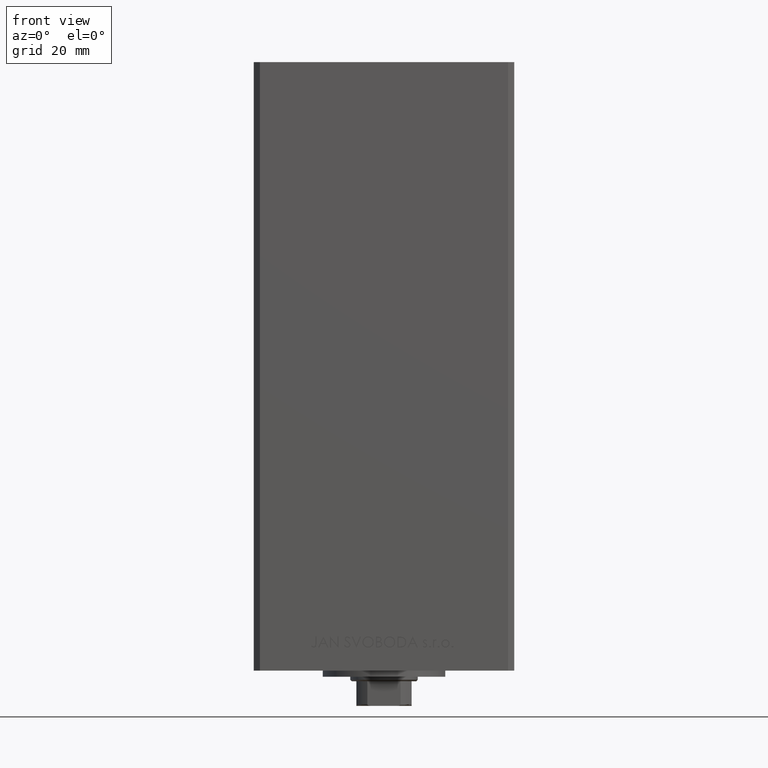
[diagram: clean part render]
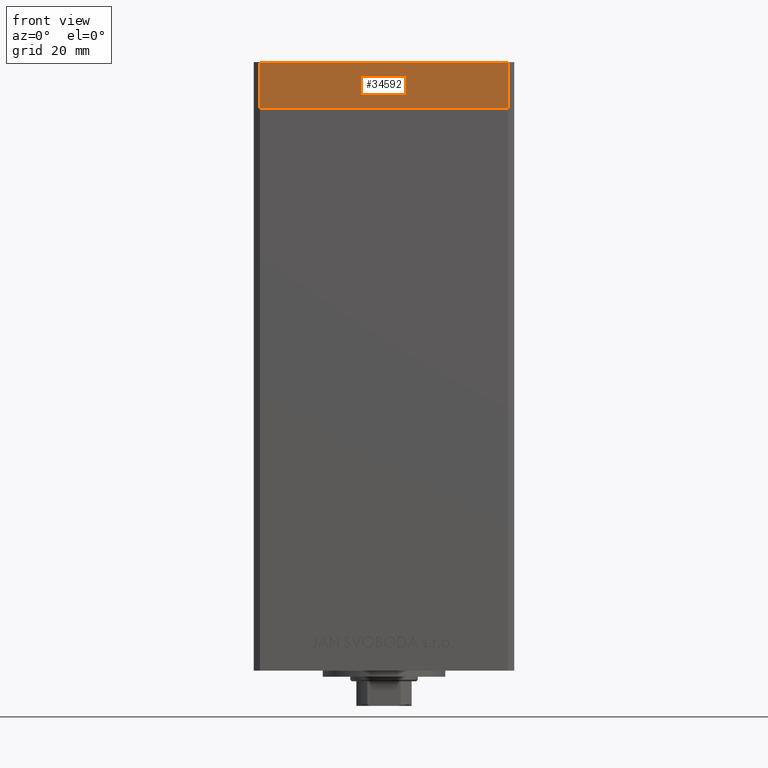
[diagram: same view with one face highlighted and labeled with its STEP entity id]
A machine part, front view. The second image highlights one B-rep face of the part: STEP entity #34592.
In plain terms, the highlighted planar face has unit normal (0, -1, 0).
Its self-contained STEP definition (entity closure, byte-faithful):
#5317 = LINE ( 'NONE', #9042, #39408 ) ;
#6408 = DIRECTION ( 'NONE',  ( 1.000000000000000000, 1.713307136767217096E-16, 0.000000000000000000 ) ) ;
#8918 = EDGE_LOOP ( 'NONE', ( #17887, #31012, #24727, #17015 ) ) ;
#9042 = CARTESIAN_POINT ( 'NONE',  ( -40.49999999999999289, -37.50000000000002132, 0.000000000000000000 ) ) ;
#9166 = PLANE ( 'NONE',  #15752 ) ;
#11300 = DIRECTION ( 'NONE',  ( 1.000000000000000000, 1.713307136767217096E-16, 0.000000000000000000 ) ) ;
#14275 = LINE ( 'NONE', #21693, #18028 ) ;
#14757 = VERTEX_POINT ( 'NONE', #46587 ) ;
#15752 = AXIS2_PLACEMENT_3D ( 'NONE', #39387, #17314, #6408 ) ;
#16349 = VECTOR ( 'NONE', #40684, 1000.000000000000000 ) ;
#17015 = ORIENTED_EDGE ( 'NONE', *, *, #39757, .T. ) ;
#17314 = DIRECTION ( 'NONE',  ( 1.713307136767217096E-16, -1.000000000000000000, 0.000000000000000000 ) ) ;
#17887 = ORIENTED_EDGE ( 'NONE', *, *, #32065, .F. ) ;
#18028 = VECTOR ( 'NONE', #11300, 1000.000000000000000 ) ;
#18384 = CARTESIAN_POINT ( 'NONE',  ( -40.49999999999999289, -37.50000000000002132, -15.00000000000000000 ) ) ;
#21052 = CARTESIAN_POINT ( 'NONE',  ( 40.50000000000000000, -37.50000000000000711, 0.000000000000000000 ) ) ;
#21693 = CARTESIAN_POINT ( 'NONE',  ( -40.49999999999999289, -37.50000000000002132, -15.00000000000000000 ) ) ;
#24628 = DIRECTION ( 'NONE',  ( 1.000000000000000000, 1.713307136767217096E-16, 0.000000000000000000 ) ) ;
#24727 = ORIENTED_EDGE ( 'NONE', *, *, #32680, .T. ) ;
#29041 = EDGE_CURVE ( 'NONE', #14757, #46691, #40441, .T. ) ;
#31012 = ORIENTED_EDGE ( 'NONE', *, *, #29041, .F. ) ;
#31372 = CARTESIAN_POINT ( 'NONE',  ( 40.50000000000000000, -37.50000000000000711, -15.00000000000000000 ) ) ;
#32065 = EDGE_CURVE ( 'NONE', #46691, #48892, #5317, .T. ) ;
#32680 = EDGE_CURVE ( 'NONE', #14757, #48546, #14275, .T. ) ;
#34592 = ADVANCED_FACE ( 'NONE', ( #43095 ), #9166, .T. ) ;
#34605 = CARTESIAN_POINT ( 'NONE',  ( 40.50000000000000000, -37.50000000000000711, -15.00000000000000000 ) ) ;
#35100 = LINE ( 'NONE', #31372, #35658 ) ;
#35658 = VECTOR ( 'NONE', #46485, 1000.000000000000000 ) ;
#39387 = CARTESIAN_POINT ( 'NONE',  ( -40.49999999999999289, -37.50000000000002132, -15.00000000000000000 ) ) ;
#39408 = VECTOR ( 'NONE', #24628, 1000.000000000000000 ) ;
#39757 = EDGE_CURVE ( 'NONE', #48546, #48892, #35100, .T. ) ;
#40380 = CARTESIAN_POINT ( 'NONE',  ( -40.49999999999999289, -37.50000000000002132, 0.000000000000000000 ) ) ;
#40441 = LINE ( 'NONE', #18384, #16349 ) ;
#40684 = DIRECTION ( 'NONE',  ( 0.000000000000000000, 0.000000000000000000, 1.000000000000000000 ) ) ;
#43095 = FACE_OUTER_BOUND ( 'NONE', #8918, .T. ) ;
#46485 = DIRECTION ( 'NONE',  ( 0.000000000000000000, 0.000000000000000000, 1.000000000000000000 ) ) ;
#46587 = CARTESIAN_POINT ( 'NONE',  ( -40.49999999999999289, -37.50000000000002132, -15.00000000000000000 ) ) ;
#46691 = VERTEX_POINT ( 'NONE', #40380 ) ;
#48546 = VERTEX_POINT ( 'NONE', #34605 ) ;
#48892 = VERTEX_POINT ( 'NONE', #21052 ) ;